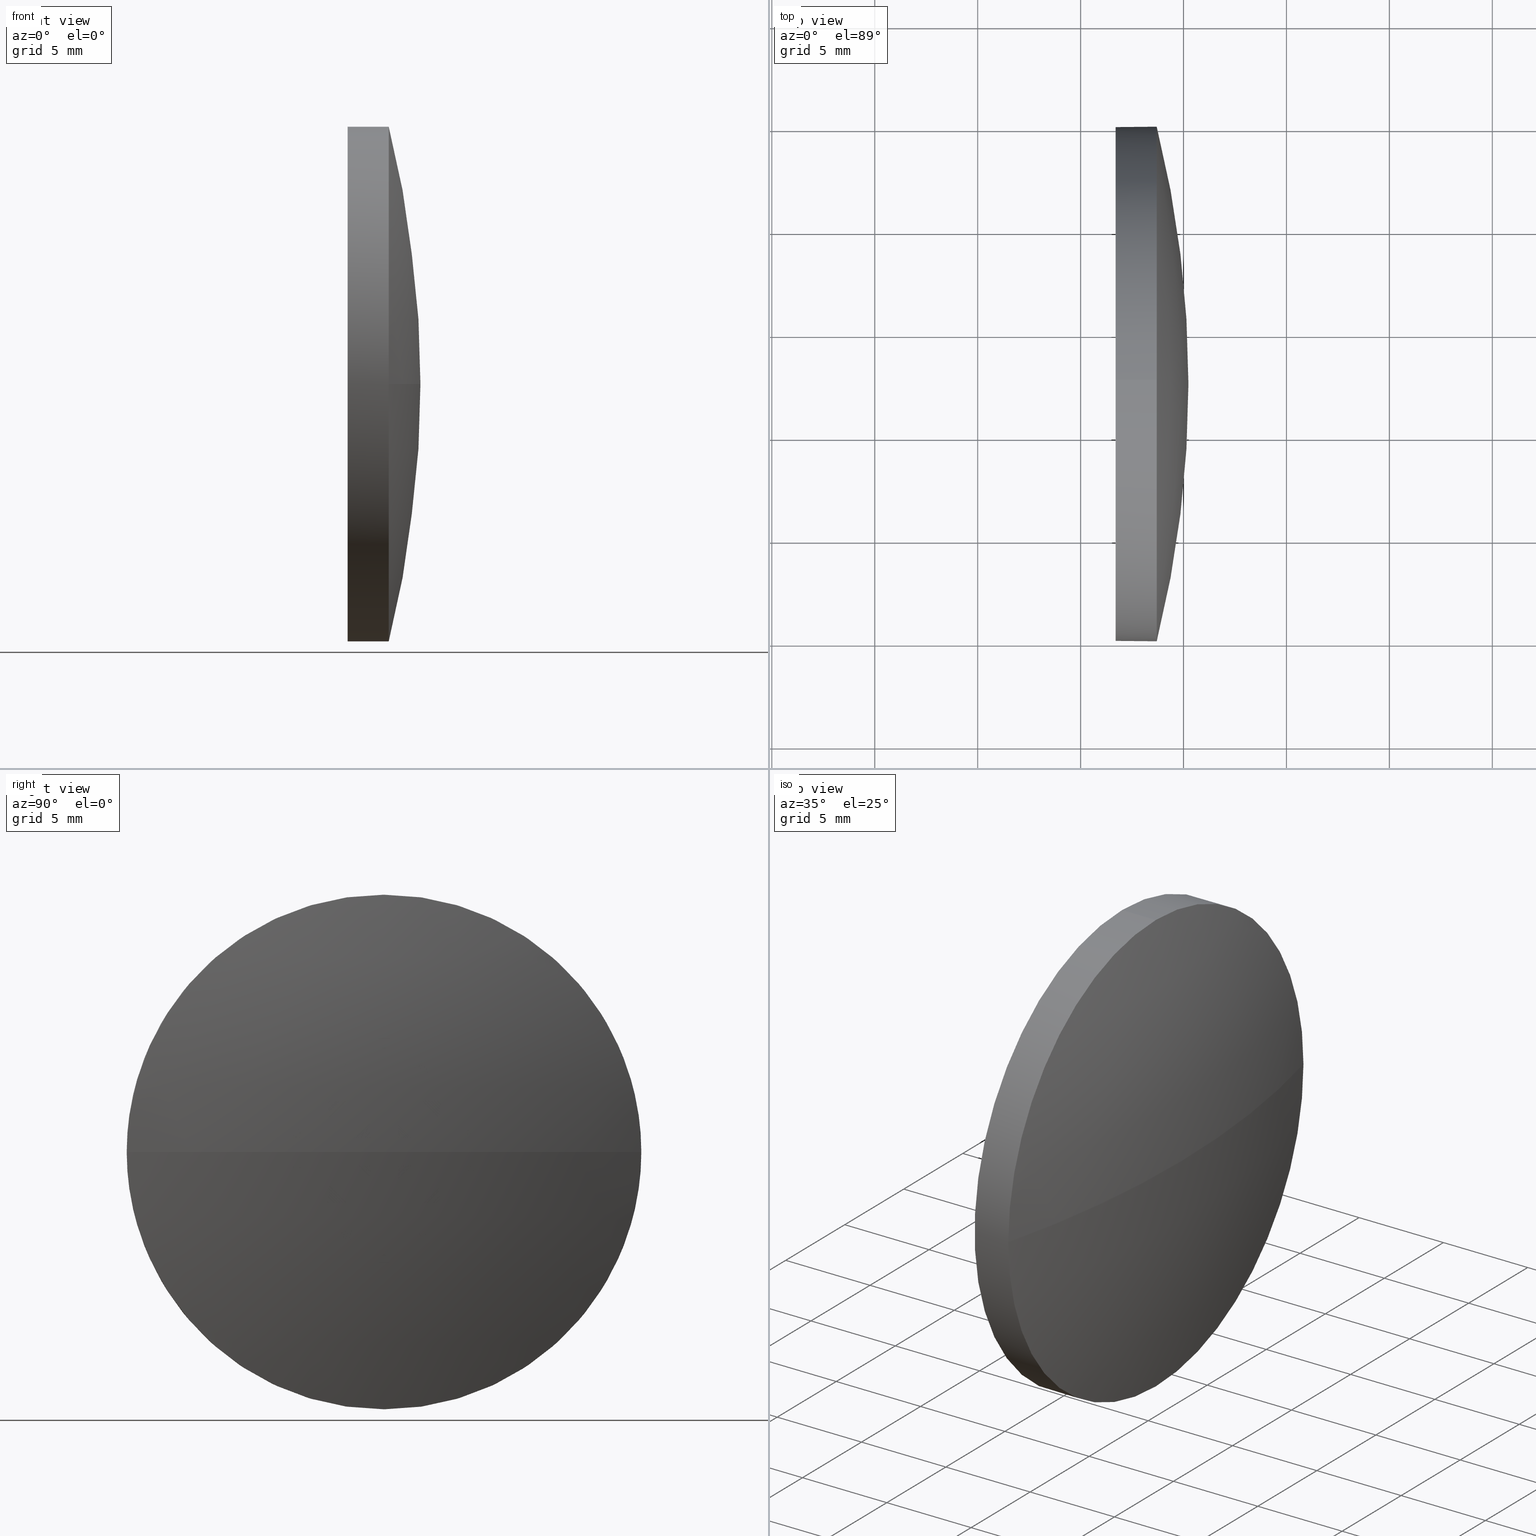
[diagram: canonical four-view strip — front | top / right | iso, engineering-drawing reading convention]
A machine part, canonical four-view strip (front | top / right | iso — engineering-drawing reading convention). The complete STEP part file that produces these views, byte-faithful:
ISO-10303-21;
HEADER;
FILE_DESCRIPTION (( 'STEP AP214' ),
    '1' );
FILE_NAME ('100130.STEP',
    '2019-05-14T09:25:17',
    ( '' ),
    ( '' ),
    'SwSTEP 2.0',
    'SolidWorks 2016',
    '' );
FILE_SCHEMA (( 'AUTOMOTIVE_DESIGN' ));
ENDSEC;

DATA;
#1 = FILL_AREA_STYLE_COLOUR ( '', #20 ) ;
#2 = ADVANCED_FACE ( 'NONE', ( #147 ), #123, .F. ) ;
#3 =( GEOMETRIC_REPRESENTATION_CONTEXT ( 3 ) GLOBAL_UNCERTAINTY_ASSIGNED_CONTEXT ( ( #96 ) ) GLOBAL_UNIT_ASSIGNED_CONTEXT ( ( #99, #118, #43 ) ) REPRESENTATION_CONTEXT ( 'NONE', 'WORKASPACE' ) );
#4 = CIRCLE ( 'NONE', #157, 12.50000000000000400 ) ;
#5 = VERTEX_POINT ( 'NONE', #183 ) ;
#6 = VECTOR ( 'NONE', #181, 1000.000000000000000 ) ;
#7 = FACE_OUTER_BOUND ( 'NONE', #34, .T. ) ;
#8 = PRODUCT_DEFINITION_FORMATION_WITH_SPECIFIED_SOURCE ( '�κ�', '', #39, .NOT_KNOWN. ) ;
#9 = EDGE_LOOP ( 'NONE', ( #89, #74 ) ) ;
#10 = DIRECTION ( 'NONE',  ( -0.0000000000000000000, 0.0000000000000000000, -1.000000000000000000 ) ) ;
#11 = CARTESIAN_POINT ( 'NONE',  ( 56.69840306798278100, 32.51047268998112800, -12.50000000000000400 ) ) ;
#12 = CARTESIAN_POINT ( 'NONE',  ( 56.69840306798278100, 32.51047268998112800, 0.0000000000000000000 ) ) ;
#13 = SPHERICAL_SURFACE ( 'NONE', #98, 51.50051948051952900 ) ;
#14 = DIRECTION ( 'NONE',  ( -0.0000000000000000000, 0.0000000000000000000, -1.000000000000000000 ) ) ;
#15 = DIRECTION ( 'NONE',  ( -1.000000000000000000, -0.0000000000000000000, -0.0000000000000000000 ) ) ;
#16 =( LENGTH_UNIT ( ) NAMED_UNIT ( * ) SI_UNIT ( .MILLI., .METRE. ) );
#17 = CARTESIAN_POINT ( 'NONE',  ( 58.69840306798278100, 45.01047268998112100, 0.0000000000000000000 ) ) ;
#18 =( GEOMETRIC_REPRESENTATION_CONTEXT ( 3 ) GLOBAL_UNCERTAINTY_ASSIGNED_CONTEXT ( ( #114 ) ) GLOBAL_UNIT_ASSIGNED_CONTEXT ( ( #16, #129, #143 ) ) REPRESENTATION_CONTEXT ( 'NONE', 'WORKASPACE' ) );
#19 = ADVANCED_BREP_SHAPE_REPRESENTATION ( '100130', ( #134, #91 ), #18 ) ;
#20 = COLOUR_RGB ( '',1.000000000000000000, 1.000000000000000000, 1.000000000000000000 ) ;
#21 = EDGE_LOOP ( 'NONE', ( #177, #22, #27, #57, #142 ) ) ;
#22 = ORIENTED_EDGE ( 'NONE', *, *, #59, .T. ) ;
#23 = ORIENTED_EDGE ( 'NONE', *, *, #44, .T. ) ;
#24 = EDGE_CURVE ( 'NONE', #37, #180, #117, .T. ) ;
#25 = DIRECTION ( 'NONE',  ( 0.0000000000000000000, 0.0000000000000000000, 1.000000000000000000 ) ) ;
#26 = DIRECTION ( 'NONE',  ( 0.0000000000000000000, 1.224646799147353200E-016, -1.000000000000000000 ) ) ;
#27 = ORIENTED_EDGE ( 'NONE', *, *, #145, .T. ) ;
#28 = CARTESIAN_POINT ( 'NONE',  ( 58.69840306798278100, 32.51047268998112800, 0.0000000000000000000 ) ) ;
#29 = FILL_AREA_STYLE ('',( #1 ) ) ;
#30 = CARTESIAN_POINT ( 'NONE',  ( 56.69840306798278100, 32.51047268998112800, 12.50000000000000400 ) ) ;
#31 = DIRECTION ( 'NONE',  ( 0.0000000000000000000, 0.0000000000000000000, 1.000000000000000000 ) ) ;
#32 =( LENGTH_UNIT ( ) NAMED_UNIT ( * ) SI_UNIT ( .MILLI., .METRE. ) );
#33 = ADVANCED_FACE ( 'NONE', ( #51 ), #13, .T. ) ;
#34 = EDGE_LOOP ( 'NONE', ( #113, #135, #87, #48, #23 ) ) ;
#35 = EDGE_CURVE ( 'NONE', #184, #5, #158, .T. ) ;
#36 = EDGE_LOOP ( 'NONE', ( #121, #171, #155, #175 ) ) ;
#37 = VERTEX_POINT ( 'NONE', #11 ) ;
#38 = CARTESIAN_POINT ( 'NONE',  ( 56.69840306798278100, 32.51047268998112800, 0.0000000000000000000 ) ) ;
#39 = PRODUCT ( '100130', '100130', '', ( #170 ) ) ;
#40 = DIRECTION ( 'NONE',  ( 1.000000000000000000, 0.0000000000000000000, 0.0000000000000000000 ) ) ;
#41 = DIRECTION ( 'NONE',  ( -1.000000000000000000, -0.0000000000000000000, -0.0000000000000000000 ) ) ;
#42 = SURFACE_STYLE_FILL_AREA ( #29 ) ;
#43 =( NAMED_UNIT ( * ) SI_UNIT ( $, .STERADIAN. ) SOLID_ANGLE_UNIT ( ) );
#44 = EDGE_CURVE ( 'NONE', #162, #184, #60, .T. ) ;
#45 = ADVANCED_FACE ( 'NONE', ( #106 ), #139, .T. ) ;
#46 = STYLED_ITEM ( 'NONE', ( #150 ), #19 ) ;
#47 = FACE_OUTER_BOUND ( 'NONE', #21, .T. ) ;
#48 = ORIENTED_EDGE ( 'NONE', *, *, #122, .F. ) ;
#49 = CLOSED_SHELL ( 'NONE', ( #100, #33, #45, #104, #2 ) ) ;
#50 = PRODUCT_DEFINITION_CONTEXT ( 'detailed design', #153, 'design' ) ;
#51 = FACE_OUTER_BOUND ( 'NONE', #36, .T. ) ;
#52 = CARTESIAN_POINT ( 'NONE',  ( 56.69840306798278100, 32.51047268998112800, 0.0000000000000000000 ) ) ;
#53 = APPLICATION_PROTOCOL_DEFINITION ( 'draft international standard', 'automotive_design', 1998, #85 ) ;
#54 = FILL_AREA_STYLE ('',( #71 ) ) ;
#55 = MECHANICAL_DESIGN_GEOMETRIC_PRESENTATION_REPRESENTATION (  '', ( #46 ), #62 ) ;
#56 = DIRECTION ( 'NONE',  ( -1.000000000000000000, -0.0000000000000000000, -0.0000000000000000000 ) ) ;
#57 = ORIENTED_EDGE ( 'NONE', *, *, #122, .T. ) ;
#58 = EDGE_CURVE ( 'NONE', #131, #184, #64, .T. ) ;
#59 = EDGE_CURVE ( 'NONE', #5, #61, #108, .T. ) ;
#60 = CIRCLE ( 'NONE', #109, 12.50000000000000400 ) ;
#61 = VERTEX_POINT ( 'NONE', #127 ) ;
#62 =( GEOMETRIC_REPRESENTATION_CONTEXT ( 3 ) GLOBAL_UNCERTAINTY_ASSIGNED_CONTEXT ( ( #165 ) ) GLOBAL_UNIT_ASSIGNED_CONTEXT ( ( #32, #81, #70 ) ) REPRESENTATION_CONTEXT ( 'NONE', 'WORKASPACE' ) );
#63 = DIRECTION ( 'NONE',  ( 1.000000000000000000, 0.0000000000000000000, 0.0000000000000000000 ) ) ;
#64 = CIRCLE ( 'NONE', #132, 51.50051948051952900 ) ;
#65 = CARTESIAN_POINT ( 'NONE',  ( 58.69840306798278100, 32.51047268998112800, 0.0000000000000000000 ) ) ;
#66 = DIRECTION ( 'NONE',  ( 0.0000000000000000000, 0.0000000000000000000, 1.000000000000000000 ) ) ;
#67 = CARTESIAN_POINT ( 'NONE',  ( 8.737883587463251400, 32.51047268998112800, 0.0000000000000000000 ) ) ;
#68 = CIRCLE ( 'NONE', #103, 12.50000000000000400 ) ;
#69 = CARTESIAN_POINT ( 'NONE',  ( 58.69840306798278100, 32.51047268998112800, 12.50000000000000400 ) ) ;
#70 =( NAMED_UNIT ( * ) SI_UNIT ( $, .STERADIAN. ) SOLID_ANGLE_UNIT ( ) );
#71 = FILL_AREA_STYLE_COLOUR ( '', #80 ) ;
#72 = EDGE_CURVE ( 'NONE', #180, #37, #4, .T. ) ;
#73 = DIRECTION ( 'NONE',  ( -1.000000000000000000, -0.0000000000000000000, -0.0000000000000000000 ) ) ;
#74 = ORIENTED_EDGE ( 'NONE', *, *, #24, .T. ) ;
#75 = CYLINDRICAL_SURFACE ( 'NONE', #83, 12.50000000000000400 ) ;
#76 = EDGE_CURVE ( 'NONE', #131, #61, #148, .T. ) ;
#77 = CARTESIAN_POINT ( 'NONE',  ( 54.33278716522182300, 32.51047268998112800, -12.50000000000000400 ) ) ;
#78 = DIRECTION ( 'NONE',  ( -1.000000000000000000, -0.0000000000000000000, -0.0000000000000000000 ) ) ;
#79 = CARTESIAN_POINT ( 'NONE',  ( 8.737883587463251400, 32.51047268998112800, 0.0000000000000000000 ) ) ;
#80 = COLOUR_RGB ( '',1.000000000000000000, 1.000000000000000000, 1.000000000000000000 ) ;
#81 =( NAMED_UNIT ( * ) PLANE_ANGLE_UNIT ( ) SI_UNIT ( $, .RADIAN. ) );
#82 = SURFACE_STYLE_USAGE ( .BOTH. , #146 ) ;
#83 = AXIS2_PLACEMENT_3D ( 'NONE', #140, #41, #169 ) ;
#84 = PRODUCT_RELATED_PRODUCT_CATEGORY ( 'part', '', ( #39 ) ) ;
#85 = APPLICATION_CONTEXT ( 'automotive_design' ) ;
#86 = DIRECTION ( 'NONE',  ( 0.0000000000000000000, 0.0000000000000000000, 1.000000000000000000 ) ) ;
#87 = ORIENTED_EDGE ( 'NONE', *, *, #72, .F. ) ;
#88 = EDGE_CURVE ( 'NONE', #5, #37, #161, .T. ) ;
#89 = ORIENTED_EDGE ( 'NONE', *, *, #72, .T. ) ;
#90 = AXIS2_PLACEMENT_3D ( 'NONE', #173, #97, #31 ) ;
#91 = AXIS2_PLACEMENT_3D ( 'NONE', #186, #156, #128 ) ;
#92 = CARTESIAN_POINT ( 'NONE',  ( 58.69840306798278100, 32.51047268998112800, 0.0000000000000000000 ) ) ;
#93 = DIRECTION ( 'NONE',  ( -1.000000000000000000, -0.0000000000000000000, -0.0000000000000000000 ) ) ;
#94 = DIRECTION ( 'NONE',  ( -1.000000000000000000, -0.0000000000000000000, -0.0000000000000000000 ) ) ;
#95 = CARTESIAN_POINT ( 'NONE',  ( 54.33278716522182300, 32.51047268998112800, 12.50000000000000400 ) ) ;
#96 = UNCERTAINTY_MEASURE_WITH_UNIT (LENGTH_MEASURE( 1.000000000000000100E-005 ), #99, 'distance_accuracy_value', 'NONE');
#97 = DIRECTION ( 'NONE',  ( -1.000000000000000000, -0.0000000000000000000, -0.0000000000000000000 ) ) ;
#98 = AXIS2_PLACEMENT_3D ( 'NONE', #152, #14, #124 ) ;
#99 =( LENGTH_UNIT ( ) NAMED_UNIT ( * ) SI_UNIT ( .MILLI., .METRE. ) );
#100 = ADVANCED_FACE ( 'NONE', ( #7 ), #75, .T. ) ;
#101 = PRESENTATION_STYLE_ASSIGNMENT (( #82 ) ) ;
#102 = ORIENTED_EDGE ( 'NONE', *, *, #76, .F. ) ;
#103 = AXIS2_PLACEMENT_3D ( 'NONE', #185, #56, #86 ) ;
#104 = ADVANCED_FACE ( 'NONE', ( #47 ), #141, .T. ) ;
#105 = PRODUCT_DEFINITION ( 'δ֪', '', #8, #50 ) ;
#106 = FACE_OUTER_BOUND ( 'NONE', #126, .T. ) ;
#107 = SURFACE_STYLE_FILL_AREA ( #54 ) ;
#108 = CIRCLE ( 'NONE', #138, 12.50000000000000400 ) ;
#109 = AXIS2_PLACEMENT_3D ( 'NONE', #65, #78, #25 ) ;
#110 = DIRECTION ( 'NONE',  ( 0.0000000000000000000, 0.0000000000000000000, 1.000000000000000000 ) ) ;
#111 = DIRECTION ( 'NONE',  ( 0.0000000000000000000, 0.0000000000000000000, 1.000000000000000000 ) ) ;
#112 = VECTOR ( 'NONE', #73, 1000.000000000000000 ) ;
#113 = ORIENTED_EDGE ( 'NONE', *, *, #35, .T. ) ;
#114 = UNCERTAINTY_MEASURE_WITH_UNIT (LENGTH_MEASURE( 1.000000000000000100E-005 ), #16, 'distance_accuracy_value', 'NONE');
#115 = AXIS2_PLACEMENT_3D ( 'NONE', #12, #40, #151 ) ;
#116 = SURFACE_STYLE_USAGE ( .BOTH. , #144 ) ;
#117 = CIRCLE ( 'NONE', #172, 12.50000000000000400 ) ;
#118 =( NAMED_UNIT ( * ) PLANE_ANGLE_UNIT ( ) SI_UNIT ( $, .RADIAN. ) );
#119 = AXIS2_PLACEMENT_3D ( 'NONE', #79, #10, #137 ) ;
#120 = LINE ( 'NONE', #95, #112 ) ;
#121 = ORIENTED_EDGE ( 'NONE', *, *, #58, .F. ) ;
#122 = EDGE_CURVE ( 'NONE', #162, #180, #120, .T. ) ;
#123 = PLANE ( 'NONE',  #115 ) ;
#124 = DIRECTION ( 'NONE',  ( 0.0000000000000000000, 1.000000000000000000, 0.0000000000000000000 ) ) ;
#125 = DIRECTION ( 'NONE',  ( 0.0000000000000000000, 1.000000000000000000, 1.224646799147353500E-016 ) ) ;
#126 = EDGE_LOOP ( 'NONE', ( #102, #164, #168, #133 ) ) ;
#127 = CARTESIAN_POINT ( 'NONE',  ( 58.69840306798278100, 20.01047268998112800, -1.530808498934191100E-015 ) ) ;
#128 = DIRECTION ( 'NONE',  ( 1.000000000000000000, 0.0000000000000000000, 0.0000000000000000000 ) ) ;
#129 =( NAMED_UNIT ( * ) PLANE_ANGLE_UNIT ( ) SI_UNIT ( $, .RADIAN. ) );
#130 = CARTESIAN_POINT ( 'NONE',  ( 60.23840306798278000, 32.51047268998112800, 0.0000000000000000000 ) ) ;
#131 = VERTEX_POINT ( 'NONE', #130 ) ;
#132 = AXIS2_PLACEMENT_3D ( 'NONE', #167, #136, #63 ) ;
#133 = ORIENTED_EDGE ( 'NONE', *, *, #145, .F. ) ;
#134 = MANIFOLD_SOLID_BREP ( '��ת1', #49 ) ;
#135 = ORIENTED_EDGE ( 'NONE', *, *, #88, .T. ) ;
#136 = DIRECTION ( 'NONE',  ( -0.0000000000000000000, 0.0000000000000000000, 1.000000000000000000 ) ) ;
#137 = DIRECTION ( 'NONE',  ( 0.0000000000000000000, 1.000000000000000000, 0.0000000000000000000 ) ) ;
#138 = AXIS2_PLACEMENT_3D ( 'NONE', #92, #93, #111 ) ;
#139 = SPHERICAL_SURFACE ( 'NONE', #119, 51.50051948051952900 ) ;
#140 = CARTESIAN_POINT ( 'NONE',  ( 54.33278716522182300, 32.51047268998112800, 0.0000000000000000000 ) ) ;
#141 = CYLINDRICAL_SURFACE ( 'NONE', #90, 12.50000000000000400 ) ;
#142 = ORIENTED_EDGE ( 'NONE', *, *, #24, .F. ) ;
#143 =( NAMED_UNIT ( * ) SI_UNIT ( $, .STERADIAN. ) SOLID_ANGLE_UNIT ( ) );
#144 = SURFACE_SIDE_STYLE ('',( #42 ) ) ;
#145 = EDGE_CURVE ( 'NONE', #61, #162, #68, .T. ) ;
#146 = SURFACE_SIDE_STYLE ('',( #107 ) ) ;
#147 = FACE_OUTER_BOUND ( 'NONE', #9, .T. ) ;
#148 = CIRCLE ( 'NONE', #166, 51.50051948051952200 ) ;
#149 = AXIS2_PLACEMENT_3D ( 'NONE', #28, #15, #182 ) ;
#150 = PRESENTATION_STYLE_ASSIGNMENT (( #116 ) ) ;
#151 = DIRECTION ( 'NONE',  ( 0.0000000000000000000, 0.0000000000000000000, -1.000000000000000000 ) ) ;
#152 = CARTESIAN_POINT ( 'NONE',  ( 8.737883587463251400, 32.51047268998112800, 0.0000000000000000000 ) ) ;
#153 = APPLICATION_CONTEXT ( 'automotive_design' ) ;
#154 = APPLICATION_PROTOCOL_DEFINITION ( 'draft international standard', 'automotive_design', 1998, #153 ) ;
#155 = ORIENTED_EDGE ( 'NONE', *, *, #59, .F. ) ;
#156 = DIRECTION ( 'NONE',  ( 0.0000000000000000000, 0.0000000000000000000, 1.000000000000000000 ) ) ;
#157 = AXIS2_PLACEMENT_3D ( 'NONE', #52, #94, #110 ) ;
#158 = CIRCLE ( 'NONE', #149, 12.50000000000000400 ) ;
#159 = SHAPE_DEFINITION_REPRESENTATION ( #174, #19 ) ;
#160 = STYLED_ITEM ( 'NONE', ( #101 ), #134 ) ;
#161 = LINE ( 'NONE', #77, #6 ) ;
#162 = VERTEX_POINT ( 'NONE', #69 ) ;
#163 = PRESENTATION_LAYER_ASSIGNMENT (  '', '', ( #46 ) ) ;
#164 = ORIENTED_EDGE ( 'NONE', *, *, #58, .T. ) ;
#165 = UNCERTAINTY_MEASURE_WITH_UNIT (LENGTH_MEASURE( 1.000000000000000100E-005 ), #32, 'distance_accuracy_value', 'NONE');
#166 = AXIS2_PLACEMENT_3D ( 'NONE', #67, #26, #125 ) ;
#167 = CARTESIAN_POINT ( 'NONE',  ( 8.737883587463251400, 32.51047268998112800, 0.0000000000000000000 ) ) ;
#168 = ORIENTED_EDGE ( 'NONE', *, *, #44, .F. ) ;
#169 = DIRECTION ( 'NONE',  ( 0.0000000000000000000, 0.0000000000000000000, 1.000000000000000000 ) ) ;
#170 = PRODUCT_CONTEXT ( 'NONE', #85, 'mechanical' ) ;
#171 = ORIENTED_EDGE ( 'NONE', *, *, #76, .T. ) ;
#172 = AXIS2_PLACEMENT_3D ( 'NONE', #38, #179, #66 ) ;
#173 = CARTESIAN_POINT ( 'NONE',  ( 54.33278716522182300, 32.51047268998112800, 0.0000000000000000000 ) ) ;
#174 = PRODUCT_DEFINITION_SHAPE ( 'NONE', 'NONE',  #105 ) ;
#175 = ORIENTED_EDGE ( 'NONE', *, *, #35, .F. ) ;
#176 = MECHANICAL_DESIGN_GEOMETRIC_PRESENTATION_REPRESENTATION (  '', ( #160 ), #3 ) ;
#177 = ORIENTED_EDGE ( 'NONE', *, *, #88, .F. ) ;
#178 = PRESENTATION_LAYER_ASSIGNMENT (  '', '', ( #160 ) ) ;
#179 = DIRECTION ( 'NONE',  ( -1.000000000000000000, -0.0000000000000000000, -0.0000000000000000000 ) ) ;
#180 = VERTEX_POINT ( 'NONE', #30 ) ;
#181 = DIRECTION ( 'NONE',  ( -1.000000000000000000, -0.0000000000000000000, -0.0000000000000000000 ) ) ;
#182 = DIRECTION ( 'NONE',  ( 0.0000000000000000000, 0.0000000000000000000, 1.000000000000000000 ) ) ;
#183 = CARTESIAN_POINT ( 'NONE',  ( 58.69840306798278100, 32.51047268998112800, -12.50000000000000400 ) ) ;
#184 = VERTEX_POINT ( 'NONE', #17 ) ;
#185 = CARTESIAN_POINT ( 'NONE',  ( 58.69840306798278100, 32.51047268998112800, 0.0000000000000000000 ) ) ;
#186 = CARTESIAN_POINT ( 'NONE',  ( 0.0000000000000000000, 0.0000000000000000000, 0.0000000000000000000 ) ) ;
ENDSEC;
END-ISO-10303-21;
